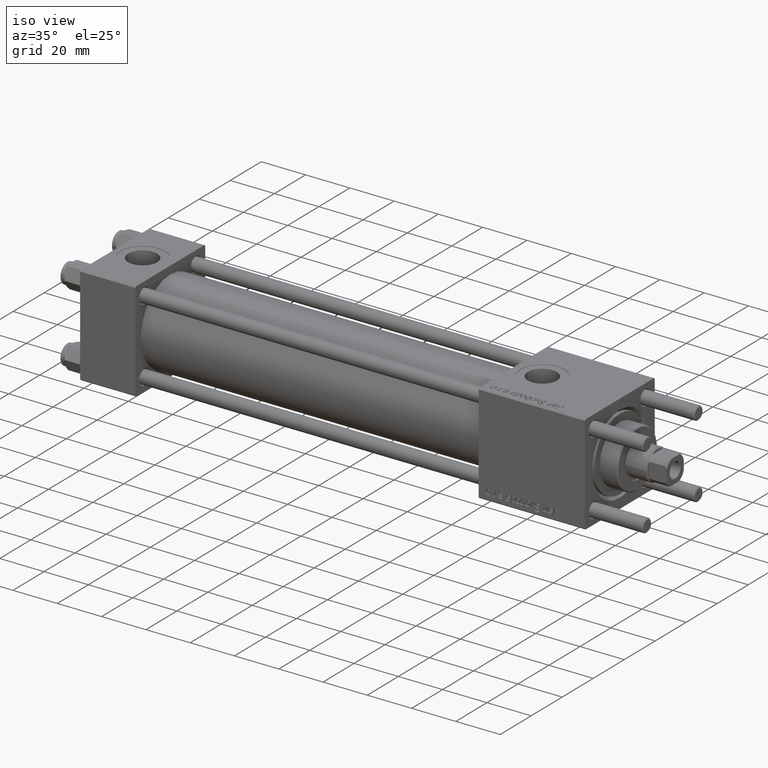
[diagram: clean part render]
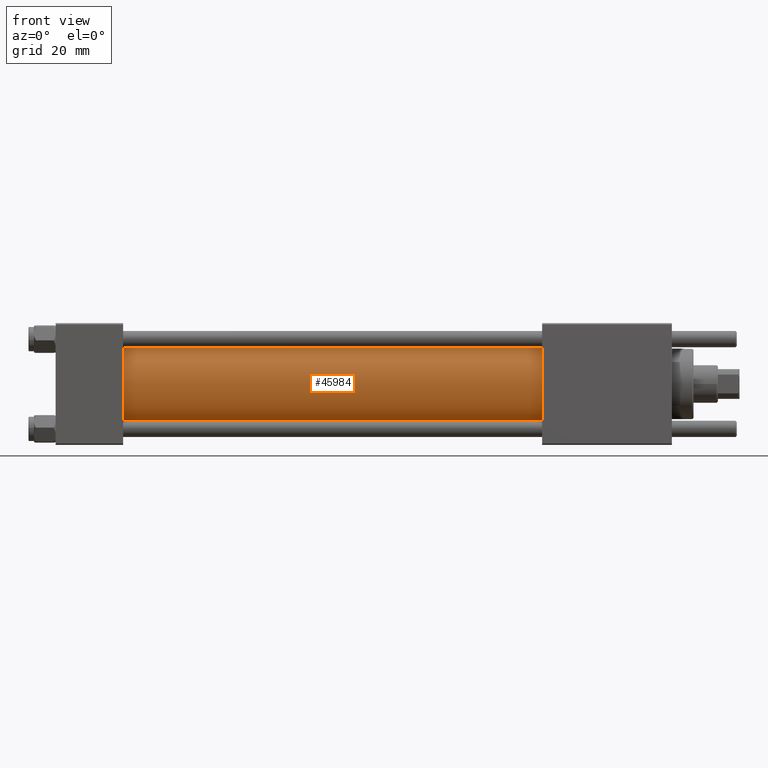
[diagram: tour spotlight — one face highlighted and labeled with its STEP entity id]
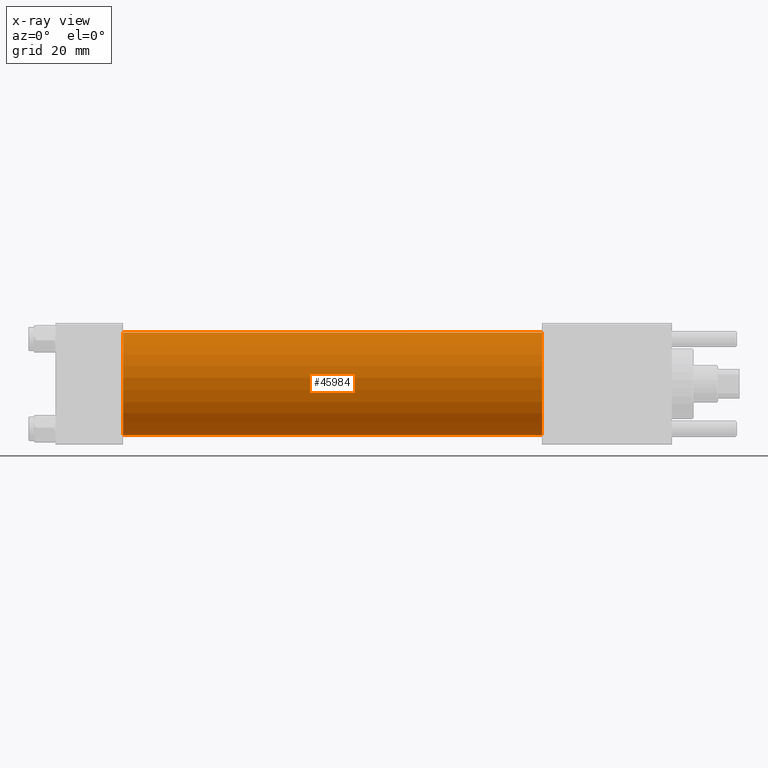
[diagram: x-ray of the same camera — body ghosted, this tour face saturated]
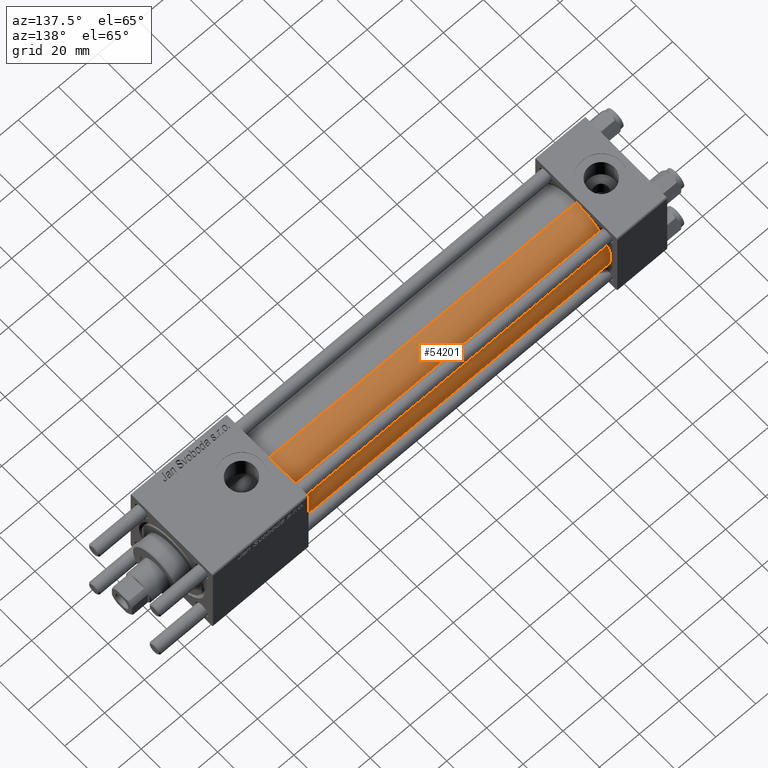
[diagram: tour spotlight — one face highlighted and labeled with its STEP entity id]
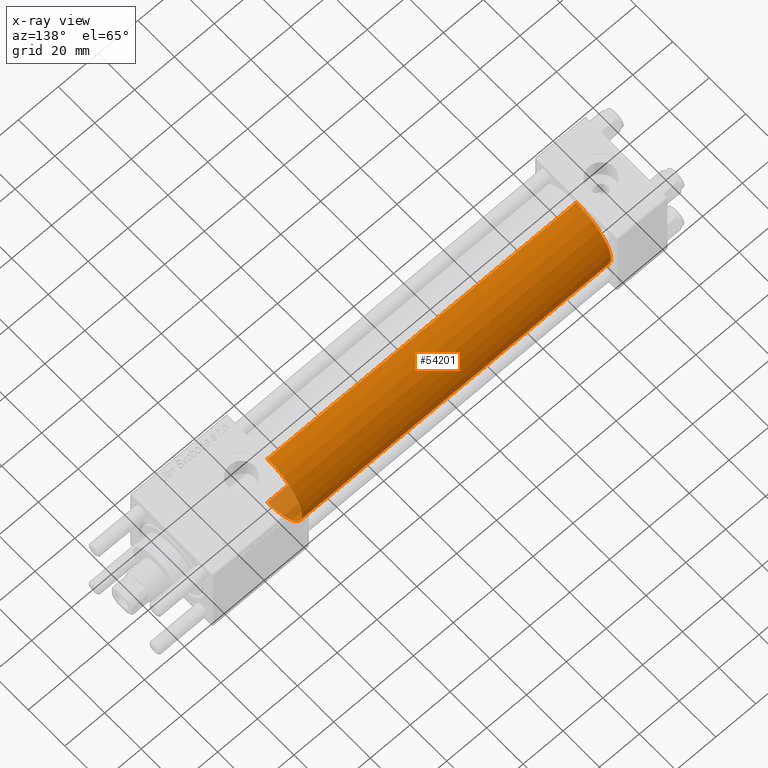
[diagram: x-ray of the same camera — body ghosted, this tour face saturated]
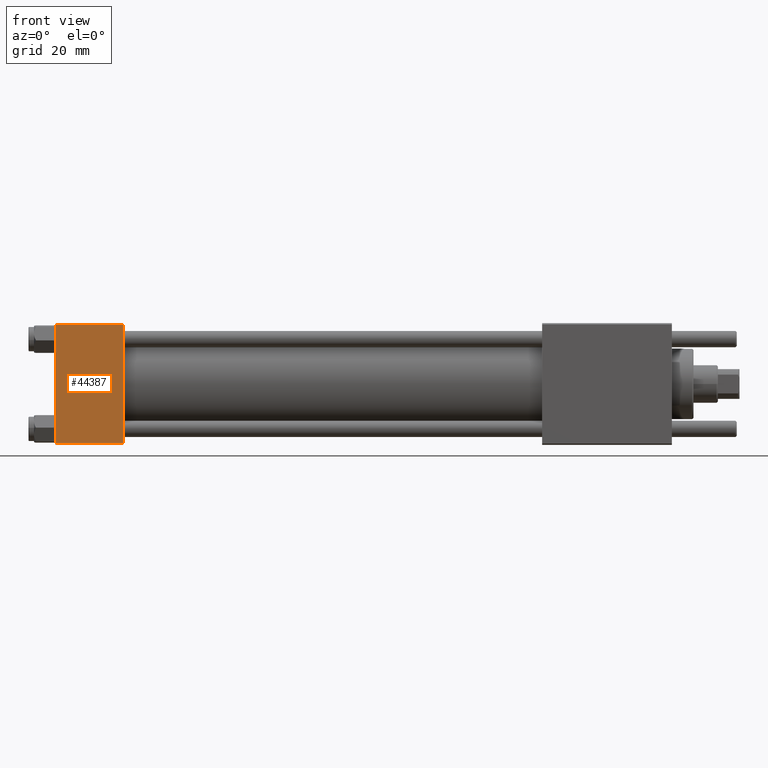
[diagram: tour spotlight — one face highlighted and labeled with its STEP entity id]
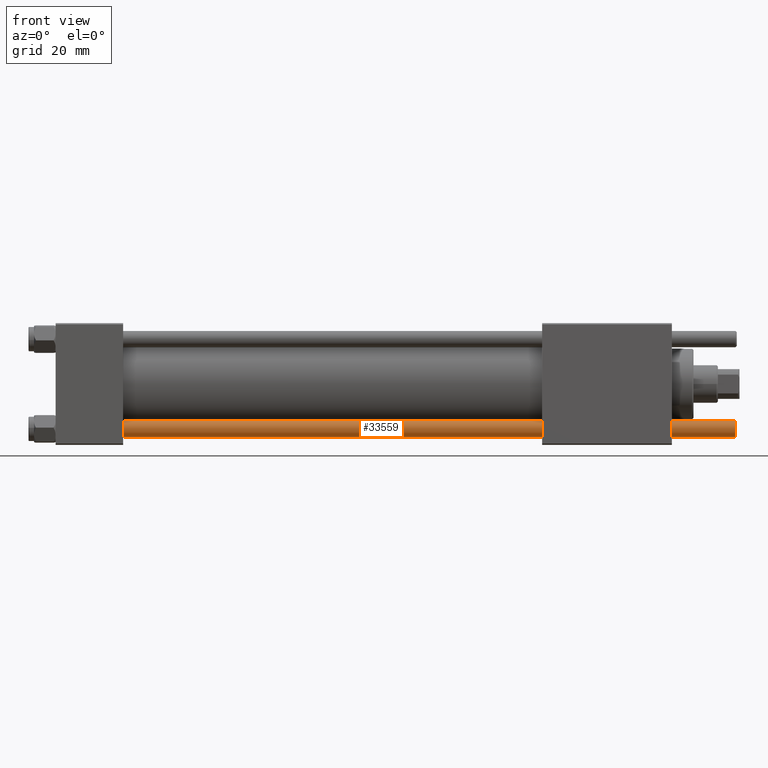
[diagram: tour spotlight — one face highlighted and labeled with its STEP entity id]
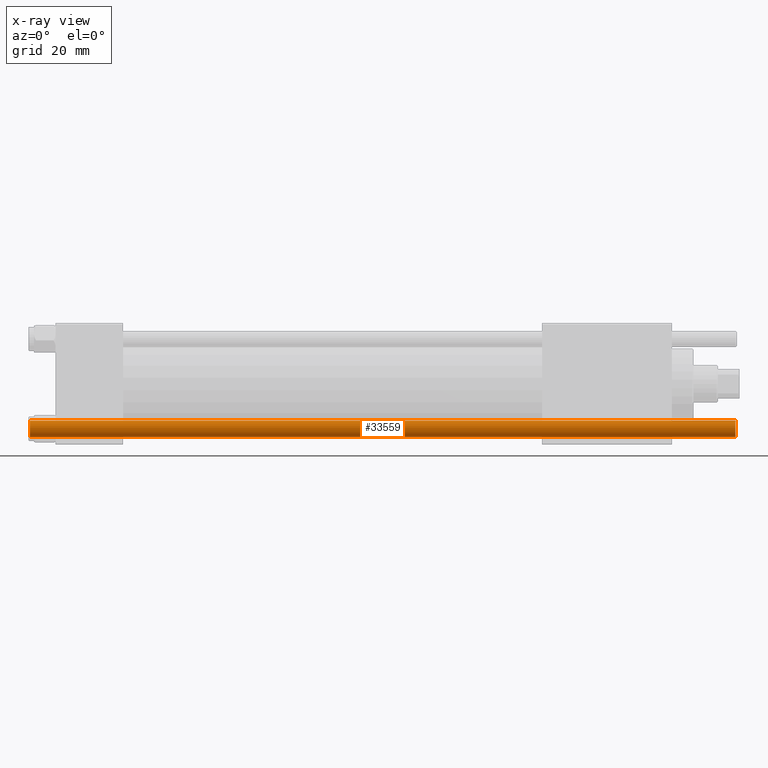
[diagram: x-ray of the same camera — body ghosted, this tour face saturated]
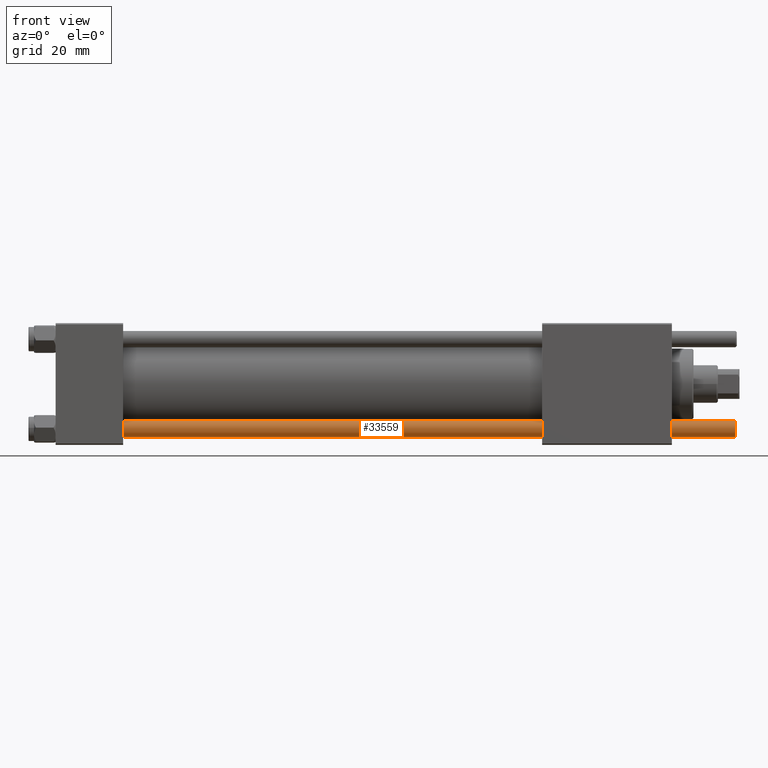
[diagram: tour spotlight — one face highlighted and labeled with its STEP entity id]
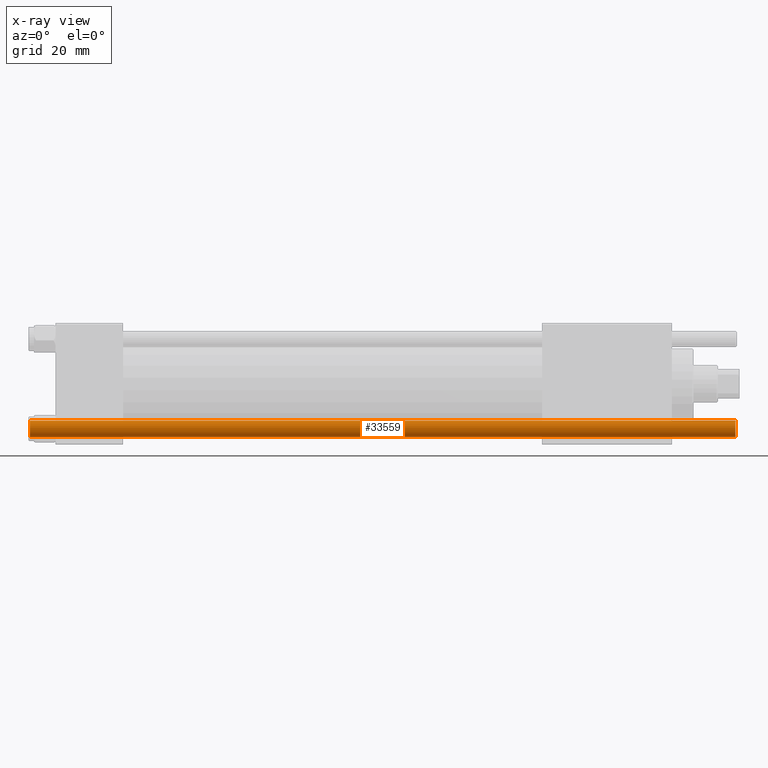
[diagram: x-ray of the same camera — body ghosted, this tour face saturated]
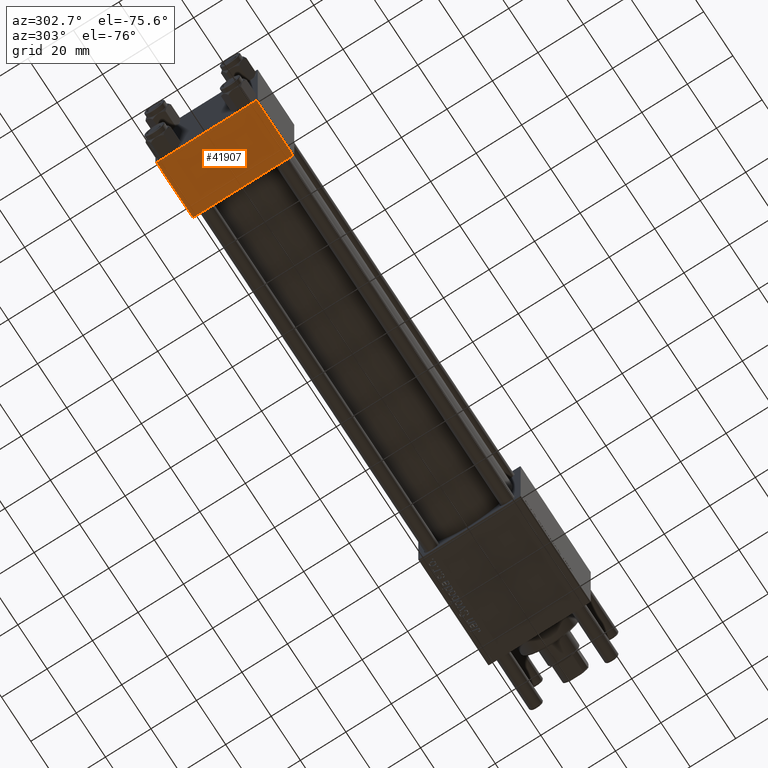
[diagram: tour spotlight — one face highlighted and labeled with its STEP entity id]
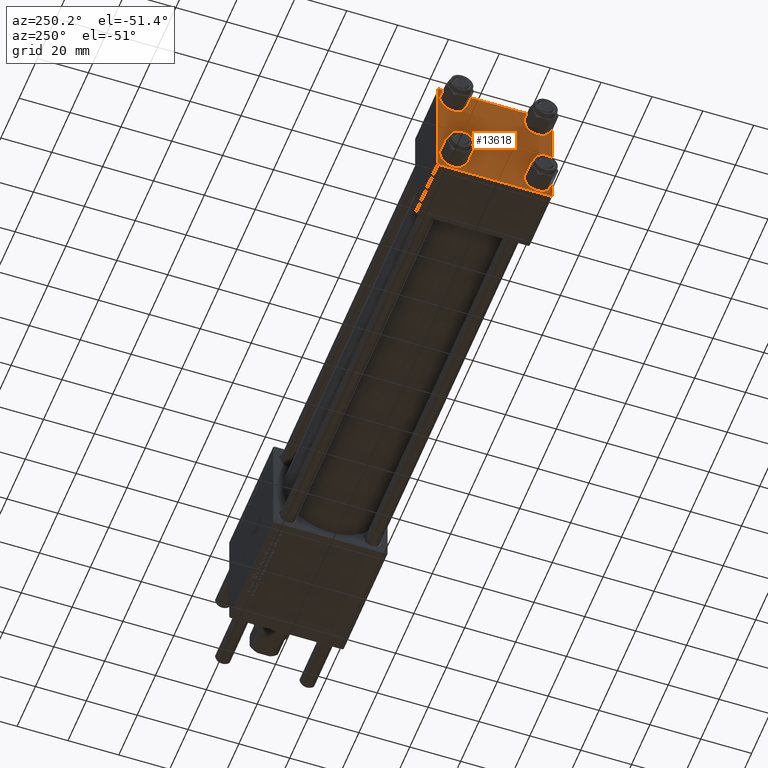
[diagram: tour spotlight — one face highlighted and labeled with its STEP entity id]
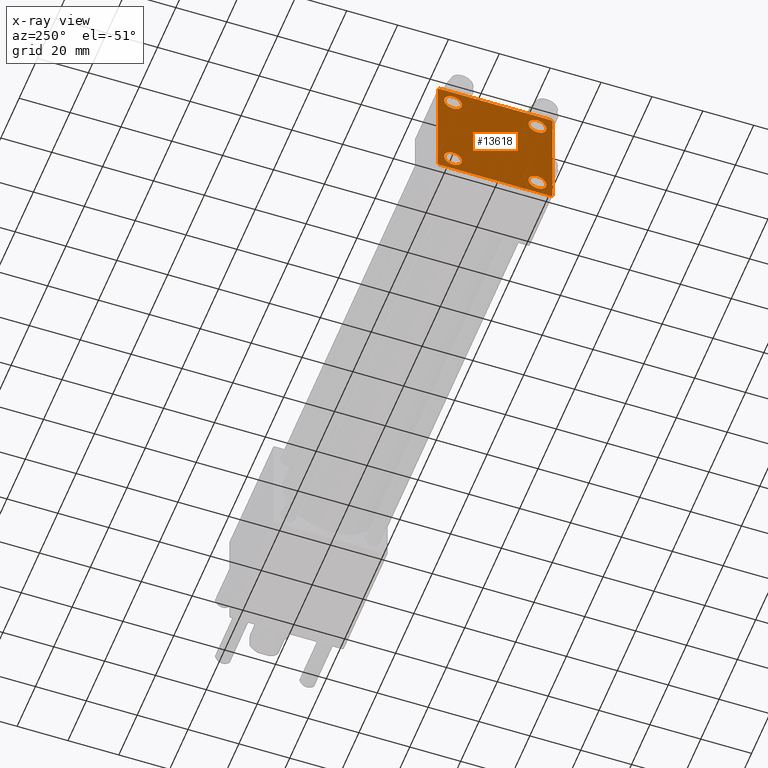
[diagram: x-ray of the same camera — body ghosted, this tour face saturated]
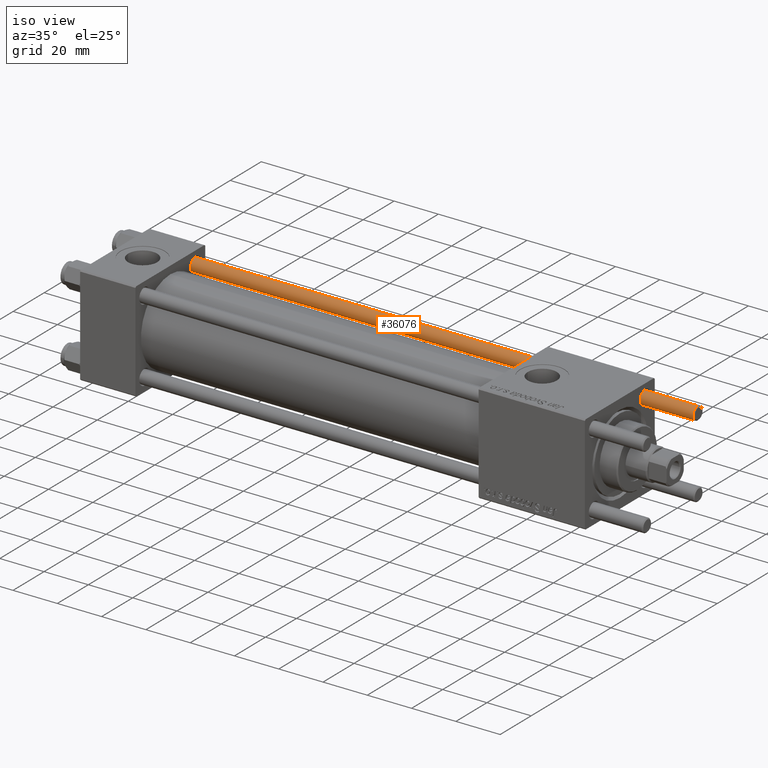
[diagram: tour spotlight — one face highlighted and labeled with its STEP entity id]
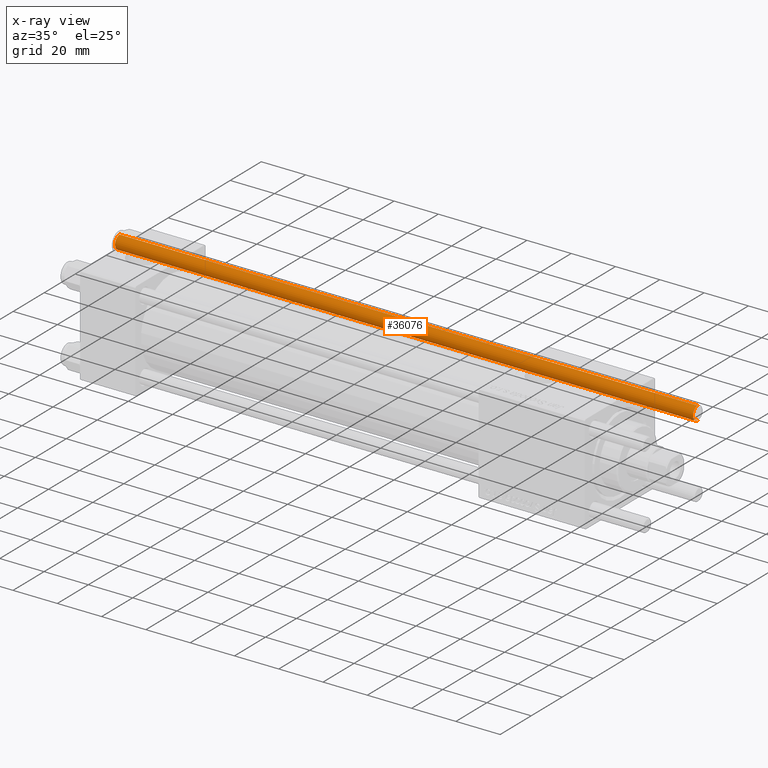
[diagram: x-ray of the same camera — body ghosted, this tour face saturated]
A machine part: a face-by-face anatomy tour. The part has 1157 B-rep faces; the first image is the clean iso view, then the 8 largest visible faces are spotlighted one at a time (largest first), each with its STEP entity span.

Face 1 — front view, entity #45984. An x-ray twin of the same camera follows (body ghosted, this face saturated) — the face is partly hidden behind the body. In plain terms, the highlighted cylindrical surface (partial cylindrical patch) has radius 19 mm, axis along (-1, -0, -0).
Definition (entity closure, byte-faithful):
#530 = DIRECTION ( 'NONE',  ( 0.000000000000000000, 0.000000000000000000, 1.000000000000000000 ) ) ;
#636 = VECTOR ( 'NONE', #50527, 1000.000000000000000 ) ;
#1388 = DIRECTION ( 'NONE',  ( -1.000000000000000000, -0.000000000000000000, -0.000000000000000000 ) ) ;
#1499 = DIRECTION ( 'NONE',  ( 0.000000000000000000, 0.000000000000000000, 1.000000000000000000 ) ) ;
#3740 = CARTESIAN_POINT ( 'NONE',  ( 24.99999999999999289, -2.602085213965210642E-15, 19.00000000000000000 ) ) ;
#5922 = DIRECTION ( 'NONE',  ( 0.000000000000000000, 0.000000000000000000, -1.000000000000000000 ) ) ;
#9732 = FACE_OUTER_BOUND ( 'NONE', #34065, .T. ) ;
#9945 = DIRECTION ( 'NONE',  ( 1.000000000000000000, 0.000000000000000000, 0.000000000000000000 ) ) ;
#10508 = LINE ( 'NONE', #42320, #30112 ) ;
#15470 = ORIENTED_EDGE ( 'NONE', *, *, #30469, .F. ) ;
#16413 = AXIS2_PLACEMENT_3D ( 'NONE', #48785, #1388, #530 ) ;
#19072 = CIRCLE ( 'NONE', #29176, 19.00000000000000000 ) ;
#19330 = CARTESIAN_POINT ( 'NONE',  ( 24.99999999999999289, -2.602085213965210642E-15, 0.000000000000000000 ) ) ;
#22240 = ORIENTED_EDGE ( 'NONE', *, *, #29735, .F. ) ;
#22649 = VERTEX_POINT ( 'NONE', #28792 ) ;
#24414 = CARTESIAN_POINT ( 'NONE',  ( 180.0000000000000000, -2.602085213965210642E-15, 19.00000000000000000 ) ) ;
#26413 = AXIS2_PLACEMENT_3D ( 'NONE', #49275, #9945, #5922 ) ;
#27809 = EDGE_CURVE ( 'NONE', #42169, #39009, #33045, .T. ) ;
#28792 = CARTESIAN_POINT ( 'NONE',  ( 24.99999999999999289, -2.752562955852396712E-16, -19.00000000000000000 ) ) ;
#29176 = AXIS2_PLACEMENT_3D ( 'NONE', #19330, #45754, #1499 ) ;
#29735 = EDGE_CURVE ( 'NONE', #34832, #22649, #10508, .T. ) ;
#30112 = VECTOR ( 'NONE', #56072, 1000.000000000000000 ) ;
#30242 = ORIENTED_EDGE ( 'NONE', *, *, #33664, .T. ) ;
#30469 = EDGE_CURVE ( 'NONE', #42169, #34832, #55769, .T. ) ;
#33045 = LINE ( 'NONE', #24414, #636 ) ;
#33664 = EDGE_CURVE ( 'NONE', #39009, #22649, #19072, .T. ) ;
#34065 = EDGE_LOOP ( 'NONE', ( #22240, #15470, #35804, #30242 ) ) ;
#34832 = VERTEX_POINT ( 'NONE', #37374 ) ;
#35804 = ORIENTED_EDGE ( 'NONE', *, *, #27809, .T. ) ;
#37374 = CARTESIAN_POINT ( 'NONE',  ( 180.0000000000000000, -2.752562955852396712E-16, -19.00000000000000000 ) ) ;
#39009 = VERTEX_POINT ( 'NONE', #3740 ) ;
#42169 = VERTEX_POINT ( 'NONE', #56400 ) ;
#42320 = CARTESIAN_POINT ( 'NONE',  ( 180.0000000000000000, -2.752562955852396712E-16, -19.00000000000000000 ) ) ;
#45754 = DIRECTION ( 'NONE',  ( 1.000000000000000000, -0.000000000000000000, 0.000000000000000000 ) ) ;
#45984 = ADVANCED_FACE ( 'NONE', ( #9732 ), #49068, .T. ) ;
#48785 = CARTESIAN_POINT ( 'NONE',  ( 180.0000000000000000, -2.602085213965210642E-15, 0.000000000000000000 ) ) ;
#49068 = CYLINDRICAL_SURFACE ( 'NONE', #16413, 19.00000000000000000 ) ;
#49275 = CARTESIAN_POINT ( 'NONE',  ( 180.0000000000000000, -2.602085213965210642E-15, 0.000000000000000000 ) ) ;
#50527 = DIRECTION ( 'NONE',  ( -1.000000000000000000, -0.000000000000000000, -0.000000000000000000 ) ) ;
#55769 = CIRCLE ( 'NONE', #26413, 19.00000000000000000 ) ;
#56072 = DIRECTION ( 'NONE',  ( -1.000000000000000000, -0.000000000000000000, -0.000000000000000000 ) ) ;
#56400 = CARTESIAN_POINT ( 'NONE',  ( 180.0000000000000000, -2.602085213965210642E-15, 19.00000000000000000 ) ) ;

Face 2 — auxiliary view, entity #54201. An x-ray twin of the same camera follows (body ghosted, this face saturated) — the face is partly hidden behind the body. In plain terms, the highlighted cylindrical surface (partial cylindrical patch) has radius 19 mm, axis along (-1, -0, -0).
Definition (entity closure, byte-faithful):
#636 = VECTOR ( 'NONE', #50527, 1000.000000000000000 ) ;
#3740 = CARTESIAN_POINT ( 'NONE',  ( 24.99999999999999289, -2.602085213965210642E-15, 19.00000000000000000 ) ) ;
#3807 = AXIS2_PLACEMENT_3D ( 'NONE', #13725, #26933, #44477 ) ;
#6478 = EDGE_CURVE ( 'NONE', #22649, #39009, #13019, .T. ) ;
#6751 = CARTESIAN_POINT ( 'NONE',  ( 24.99999999999999289, -2.602085213965210642E-15, 0.000000000000000000 ) ) ;
#7599 = AXIS2_PLACEMENT_3D ( 'NONE', #29967, #47472, #8123 ) ;
#8123 = DIRECTION ( 'NONE',  ( 0.000000000000000000, 0.000000000000000000, -1.000000000000000000 ) ) ;
#9160 = EDGE_CURVE ( 'NONE', #34832, #42169, #37893, .T. ) ;
#10271 = AXIS2_PLACEMENT_3D ( 'NONE', #6751, #36668, #14813 ) ;
#10508 = LINE ( 'NONE', #42320, #30112 ) ;
#13019 = CIRCLE ( 'NONE', #10271, 19.00000000000000000 ) ;
#13725 = CARTESIAN_POINT ( 'NONE',  ( 180.0000000000000000, -2.602085213965210642E-15, 0.000000000000000000 ) ) ;
#13810 = ORIENTED_EDGE ( 'NONE', *, *, #6478, .T. ) ;
#14813 = DIRECTION ( 'NONE',  ( 0.000000000000000000, 0.000000000000000000, 1.000000000000000000 ) ) ;
#17918 = ORIENTED_EDGE ( 'NONE', *, *, #29735, .T. ) ;
#22649 = VERTEX_POINT ( 'NONE', #28792 ) ;
#24414 = CARTESIAN_POINT ( 'NONE',  ( 180.0000000000000000, -2.602085213965210642E-15, 19.00000000000000000 ) ) ;
#26933 = DIRECTION ( 'NONE',  ( -1.000000000000000000, -0.000000000000000000, -0.000000000000000000 ) ) ;
#27809 = EDGE_CURVE ( 'NONE', #42169, #39009, #33045, .T. ) ;
#28792 = CARTESIAN_POINT ( 'NONE',  ( 24.99999999999999289, -2.752562955852396712E-16, -19.00000000000000000 ) ) ;
#29735 = EDGE_CURVE ( 'NONE', #34832, #22649, #10508, .T. ) ;
#29967 = CARTESIAN_POINT ( 'NONE',  ( 180.0000000000000000, -2.602085213965210642E-15, 0.000000000000000000 ) ) ;
#30112 = VECTOR ( 'NONE', #56072, 1000.000000000000000 ) ;
#33045 = LINE ( 'NONE', #24414, #636 ) ;
#34832 = VERTEX_POINT ( 'NONE', #37374 ) ;
#36549 = ORIENTED_EDGE ( 'NONE', *, *, #9160, .F. ) ;
#36668 = DIRECTION ( 'NONE',  ( 1.000000000000000000, -0.000000000000000000, 0.000000000000000000 ) ) ;
#37374 = CARTESIAN_POINT ( 'NONE',  ( 180.0000000000000000, -2.752562955852396712E-16, -19.00000000000000000 ) ) ;
#37893 = CIRCLE ( 'NONE', #7599, 19.00000000000000000 ) ;
#38744 = ORIENTED_EDGE ( 'NONE', *, *, #27809, .F. ) ;
#39009 = VERTEX_POINT ( 'NONE', #3740 ) ;
#42169 = VERTEX_POINT ( 'NONE', #56400 ) ;
#42320 = CARTESIAN_POINT ( 'NONE',  ( 180.0000000000000000, -2.752562955852396712E-16, -19.00000000000000000 ) ) ;
#44477 = DIRECTION ( 'NONE',  ( 0.000000000000000000, 0.000000000000000000, 1.000000000000000000 ) ) ;
#47472 = DIRECTION ( 'NONE',  ( 1.000000000000000000, 0.000000000000000000, 0.000000000000000000 ) ) ;
#50527 = DIRECTION ( 'NONE',  ( -1.000000000000000000, -0.000000000000000000, -0.000000000000000000 ) ) ;
#52775 = FACE_OUTER_BOUND ( 'NONE', #55007, .T. ) ;
#53056 = CYLINDRICAL_SURFACE ( 'NONE', #3807, 19.00000000000000000 ) ;
#54201 = ADVANCED_FACE ( 'NONE', ( #52775 ), #53056, .T. ) ;
#55007 = EDGE_LOOP ( 'NONE', ( #36549, #17918, #13810, #38744 ) ) ;
#56072 = DIRECTION ( 'NONE',  ( -1.000000000000000000, -0.000000000000000000, -0.000000000000000000 ) ) ;
#56400 = CARTESIAN_POINT ( 'NONE',  ( 180.0000000000000000, -2.602085213965210642E-15, 19.00000000000000000 ) ) ;

Face 3 — front view, entity #44387. In plain terms, the highlighted planar face has unit normal (0, 1, 0).
Definition (entity closure, byte-faithful):
#3093 = VECTOR ( 'NONE', #3635, 1000.000000000000000 ) ;
#3492 = AXIS2_PLACEMENT_3D ( 'NONE', #15169, #33278, #23508 ) ;
#3635 = DIRECTION ( 'NONE',  ( 0.000000000000000000, 0.000000000000000000, -1.000000000000000000 ) ) ;
#7882 = LINE ( 'NONE', #56706, #11425 ) ;
#9506 = CARTESIAN_POINT ( 'NONE',  ( 25.00000000000000000, -22.50000000000000000, -21.99999999999998579 ) ) ;
#10862 = PLANE ( 'NONE',  #3492 ) ;
#11425 = VECTOR ( 'NONE', #43235, 1000.000000000000000 ) ;
#12126 = EDGE_CURVE ( 'NONE', #53632, #19858, #47017, .T. ) ;
#12219 = EDGE_CURVE ( 'NONE', #53632, #32610, #26597, .T. ) ;
#14102 = LINE ( 'NONE', #9506, #42971 ) ;
#15169 = CARTESIAN_POINT ( 'NONE',  ( 25.00000000000000000, -22.50000000000000000, 22.50000000000000000 ) ) ;
#18832 = CARTESIAN_POINT ( 'NONE',  ( 25.00000000000000000, -22.50000000000000000, 22.00000000000000000 ) ) ;
#19460 = EDGE_CURVE ( 'NONE', #32610, #56029, #7882, .T. ) ;
#19493 = CARTESIAN_POINT ( 'NONE',  ( 25.00000000000000000, -22.50000000000000000, -21.99999999999997158 ) ) ;
#19858 = VERTEX_POINT ( 'NONE', #19493 ) ;
#22814 = CARTESIAN_POINT ( 'NONE',  ( 0.000000000000000000, -22.50000000000000000, 22.00000000000000000 ) ) ;
#22848 = DIRECTION ( 'NONE',  ( -1.000000000000000000, 0.000000000000000000, 0.000000000000000000 ) ) ;
#23508 = DIRECTION ( 'NONE',  ( 0.000000000000000000, -0.000000000000000000, 1.000000000000000000 ) ) ;
#25353 = ORIENTED_EDGE ( 'NONE', *, *, #12219, .T. ) ;
#26597 = LINE ( 'NONE', #18832, #42565 ) ;
#28860 = CARTESIAN_POINT ( 'NONE',  ( 0.000000000000000000, -22.50000000000000000, -21.99999999999997158 ) ) ;
#30229 = ORIENTED_EDGE ( 'NONE', *, *, #19460, .T. ) ;
#30406 = ORIENTED_EDGE ( 'NONE', *, *, #12126, .F. ) ;
#32610 = VERTEX_POINT ( 'NONE', #22814 ) ;
#33278 = DIRECTION ( 'NONE',  ( -0.000000000000000000, 1.000000000000000000, 0.000000000000000000 ) ) ;
#40587 = CARTESIAN_POINT ( 'NONE',  ( 25.00000000000000000, -22.50000000000000000, 22.00000000000000000 ) ) ;
#42182 = FACE_OUTER_BOUND ( 'NONE', #43141, .T. ) ;
#42565 = VECTOR ( 'NONE', #22848, 1000.000000000000000 ) ;
#42971 = VECTOR ( 'NONE', #44574, 1000.000000000000000 ) ;
#43141 = EDGE_LOOP ( 'NONE', ( #30229, #48193, #30406, #25353 ) ) ;
#43235 = DIRECTION ( 'NONE',  ( 0.000000000000000000, 0.000000000000000000, -1.000000000000000000 ) ) ;
#44068 = EDGE_CURVE ( 'NONE', #56029, #19858, #14102, .T. ) ;
#44387 = ADVANCED_FACE ( 'NONE', ( #42182 ), #10862, .F. ) ;
#44574 = DIRECTION ( 'NONE',  ( 1.000000000000000000, 0.000000000000000000, 0.000000000000000000 ) ) ;
#47017 = LINE ( 'NONE', #56770, #3093 ) ;
#48193 = ORIENTED_EDGE ( 'NONE', *, *, #44068, .T. ) ;
#53632 = VERTEX_POINT ( 'NONE', #40587 ) ;
#56029 = VERTEX_POINT ( 'NONE', #28860 ) ;
#56706 = CARTESIAN_POINT ( 'NONE',  ( 0.000000000000000000, -22.50000000000000000, 22.50000000000000000 ) ) ;
#56770 = CARTESIAN_POINT ( 'NONE',  ( 25.00000000000000000, -22.50000000000000000, 22.50000000000000000 ) ) ;

Face 4 — front view, entity #33559. An x-ray twin of the same camera follows (body ghosted, this face saturated) — the face is partly hidden behind the body. In plain terms, the highlighted cylindrical surface (edge-blend (fillet) strip) has radius 3 mm, axis along (-1, 0, -0).
Definition (entity closure, byte-faithful):
#3924 = ORIENTED_EDGE ( 'NONE', *, *, #44364, .F. ) ;
#4052 = EDGE_CURVE ( 'NONE', #16717, #43150, #30163, .T. ) ;
#4483 = ORIENTED_EDGE ( 'NONE', *, *, #15848, .T. ) ;
#6328 = DIRECTION ( 'NONE',  ( 1.000000000000000000, 0.000000000000000000, 0.000000000000000000 ) ) ;
#6733 = CIRCLE ( 'NONE', #36119, 3.000000000000000444 ) ;
#9513 = CYLINDRICAL_SURFACE ( 'NONE', #43861, 3.000000000000000444 ) ;
#10006 = DIRECTION ( 'NONE',  ( 1.000000000000000000, 0.000000000000000000, 0.000000000000000000 ) ) ;
#14887 = DIRECTION ( 'NONE',  ( -0.000000000000000000, -0.000000000000000000, 1.000000000000000000 ) ) ;
#15233 = DIRECTION ( 'NONE',  ( 0.000000000000000000, 0.000000000000000000, -1.000000000000000000 ) ) ;
#15739 = DIRECTION ( 'NONE',  ( -0.000000000000000000, -0.000000000000000000, -1.000000000000000000 ) ) ;
#15848 = EDGE_CURVE ( 'NONE', #49711, #27907, #6733, .T. ) ;
#16717 = VERTEX_POINT ( 'NONE', #39714 ) ;
#18994 = DIRECTION ( 'NONE',  ( -0.000000000000000000, -0.000000000000000000, -1.000000000000000000 ) ) ;
#19204 = CARTESIAN_POINT ( 'NONE',  ( -3.000000000000000444, 0.000000000000000000, 262.0000000000000000 ) ) ;
#21914 = AXIS2_PLACEMENT_3D ( 'NONE', #37373, #15233, #6328 ) ;
#23306 = CARTESIAN_POINT ( 'NONE',  ( 0.000000000000000000, 0.000000000000000000, 262.0000000000000000 ) ) ;
#23320 = ORIENTED_EDGE ( 'NONE', *, *, #34718, .T. ) ;
#24620 = VECTOR ( 'NONE', #15739, 1000.000000000000000 ) ;
#27320 = DIRECTION ( 'NONE',  ( -1.000000000000000000, 0.000000000000000000, 0.000000000000000000 ) ) ;
#27532 = CARTESIAN_POINT ( 'NONE',  ( 0.000000000000000000, 0.000000000000000000, 0.5000000000000004441 ) ) ;
#27907 = VERTEX_POINT ( 'NONE', #52998 ) ;
#29952 = CARTESIAN_POINT ( 'NONE',  ( 3.000000000000000444, 3.673940397442060361E-16, 0.5000000000000004441 ) ) ;
#30163 = CIRCLE ( 'NONE', #21914, 3.000000000000000444 ) ;
#33559 = ADVANCED_FACE ( 'NONE', ( #45146 ), #9513, .T. ) ;
#34718 = EDGE_CURVE ( 'NONE', #43150, #49711, #39211, .T. ) ;
#34890 = DIRECTION ( 'NONE',  ( -0.000000000000000000, -0.000000000000000000, -1.000000000000000000 ) ) ;
#35611 = VECTOR ( 'NONE', #34890, 1000.000000000000000 ) ;
#35723 = CARTESIAN_POINT ( 'NONE',  ( 3.000000000000000444, 3.673940397442060361E-16, 261.5000000000000568 ) ) ;
#36119 = AXIS2_PLACEMENT_3D ( 'NONE', #27532, #14887, #10006 ) ;
#37306 = LINE ( 'NONE', #19204, #24620 ) ;
#37373 = CARTESIAN_POINT ( 'NONE',  ( 0.000000000000000000, 0.000000000000000000, 261.5000000000000568 ) ) ;
#39211 = LINE ( 'NONE', #56702, #35611 ) ;
#39714 = CARTESIAN_POINT ( 'NONE',  ( -3.000000000000000444, 0.000000000000000000, 261.5000000000000568 ) ) ;
#39939 = EDGE_LOOP ( 'NONE', ( #43008, #23320, #4483, #3924 ) ) ;
#43008 = ORIENTED_EDGE ( 'NONE', *, *, #4052, .T. ) ;
#43150 = VERTEX_POINT ( 'NONE', #35723 ) ;
#43861 = AXIS2_PLACEMENT_3D ( 'NONE', #23306, #18994, #27320 ) ;
#44364 = EDGE_CURVE ( 'NONE', #16717, #27907, #37306, .T. ) ;
#45146 = FACE_OUTER_BOUND ( 'NONE', #39939, .T. ) ;
#49711 = VERTEX_POINT ( 'NONE', #29952 ) ;
#52998 = CARTESIAN_POINT ( 'NONE',  ( -3.000000000000000444, 0.000000000000000000, 0.5000000000000004441 ) ) ;
#56702 = CARTESIAN_POINT ( 'NONE',  ( 3.000000000000000444, 3.673940397442060361E-16, 262.0000000000000000 ) ) ;

Face 5 — front view, entity #33559. An x-ray twin of the same camera follows (body ghosted, this face saturated) — the face is partly hidden behind the body. In plain terms, the highlighted cylindrical surface (edge-blend (fillet) strip) has radius 3 mm, axis along (1, 0, 0).
Definition (entity closure, byte-faithful):
#3924 = ORIENTED_EDGE ( 'NONE', *, *, #44364, .F. ) ;
#4052 = EDGE_CURVE ( 'NONE', #16717, #43150, #30163, .T. ) ;
#4483 = ORIENTED_EDGE ( 'NONE', *, *, #15848, .T. ) ;
#6328 = DIRECTION ( 'NONE',  ( 1.000000000000000000, 0.000000000000000000, 0.000000000000000000 ) ) ;
#6733 = CIRCLE ( 'NONE', #36119, 3.000000000000000444 ) ;
#9513 = CYLINDRICAL_SURFACE ( 'NONE', #43861, 3.000000000000000444 ) ;
#10006 = DIRECTION ( 'NONE',  ( 1.000000000000000000, 0.000000000000000000, 0.000000000000000000 ) ) ;
#14887 = DIRECTION ( 'NONE',  ( -0.000000000000000000, -0.000000000000000000, 1.000000000000000000 ) ) ;
#15233 = DIRECTION ( 'NONE',  ( 0.000000000000000000, 0.000000000000000000, -1.000000000000000000 ) ) ;
#15739 = DIRECTION ( 'NONE',  ( -0.000000000000000000, -0.000000000000000000, -1.000000000000000000 ) ) ;
#15848 = EDGE_CURVE ( 'NONE', #49711, #27907, #6733, .T. ) ;
#16717 = VERTEX_POINT ( 'NONE', #39714 ) ;
#18994 = DIRECTION ( 'NONE',  ( -0.000000000000000000, -0.000000000000000000, -1.000000000000000000 ) ) ;
#19204 = CARTESIAN_POINT ( 'NONE',  ( -3.000000000000000444, 0.000000000000000000, 262.0000000000000000 ) ) ;
#21914 = AXIS2_PLACEMENT_3D ( 'NONE', #37373, #15233, #6328 ) ;
#23306 = CARTESIAN_POINT ( 'NONE',  ( 0.000000000000000000, 0.000000000000000000, 262.0000000000000000 ) ) ;
#23320 = ORIENTED_EDGE ( 'NONE', *, *, #34718, .T. ) ;
#24620 = VECTOR ( 'NONE', #15739, 1000.000000000000000 ) ;
#27320 = DIRECTION ( 'NONE',  ( -1.000000000000000000, 0.000000000000000000, 0.000000000000000000 ) ) ;
#27532 = CARTESIAN_POINT ( 'NONE',  ( 0.000000000000000000, 0.000000000000000000, 0.5000000000000004441 ) ) ;
#27907 = VERTEX_POINT ( 'NONE', #52998 ) ;
#29952 = CARTESIAN_POINT ( 'NONE',  ( 3.000000000000000444, 3.673940397442060361E-16, 0.5000000000000004441 ) ) ;
#30163 = CIRCLE ( 'NONE', #21914, 3.000000000000000444 ) ;
#33559 = ADVANCED_FACE ( 'NONE', ( #45146 ), #9513, .T. ) ;
#34718 = EDGE_CURVE ( 'NONE', #43150, #49711, #39211, .T. ) ;
#34890 = DIRECTION ( 'NONE',  ( -0.000000000000000000, -0.000000000000000000, -1.000000000000000000 ) ) ;
#35611 = VECTOR ( 'NONE', #34890, 1000.000000000000000 ) ;
#35723 = CARTESIAN_POINT ( 'NONE',  ( 3.000000000000000444, 3.673940397442060361E-16, 261.5000000000000568 ) ) ;
#36119 = AXIS2_PLACEMENT_3D ( 'NONE', #27532, #14887, #10006 ) ;
#37306 = LINE ( 'NONE', #19204, #24620 ) ;
#37373 = CARTESIAN_POINT ( 'NONE',  ( 0.000000000000000000, 0.000000000000000000, 261.5000000000000568 ) ) ;
#39211 = LINE ( 'NONE', #56702, #35611 ) ;
#39714 = CARTESIAN_POINT ( 'NONE',  ( -3.000000000000000444, 0.000000000000000000, 261.5000000000000568 ) ) ;
#39939 = EDGE_LOOP ( 'NONE', ( #43008, #23320, #4483, #3924 ) ) ;
#43008 = ORIENTED_EDGE ( 'NONE', *, *, #4052, .T. ) ;
#43150 = VERTEX_POINT ( 'NONE', #35723 ) ;
#43861 = AXIS2_PLACEMENT_3D ( 'NONE', #23306, #18994, #27320 ) ;
#44364 = EDGE_CURVE ( 'NONE', #16717, #27907, #37306, .T. ) ;
#45146 = FACE_OUTER_BOUND ( 'NONE', #39939, .T. ) ;
#49711 = VERTEX_POINT ( 'NONE', #29952 ) ;
#52998 = CARTESIAN_POINT ( 'NONE',  ( -3.000000000000000444, 0.000000000000000000, 0.5000000000000004441 ) ) ;
#56702 = CARTESIAN_POINT ( 'NONE',  ( 3.000000000000000444, 3.673940397442060361E-16, 262.0000000000000000 ) ) ;

Face 6 — auxiliary view, entity #41907. In plain terms, the highlighted planar face has unit normal (0, 0, -1).
Definition (entity closure, byte-faithful):
#133 = DIRECTION ( 'NONE',  ( 0.000000000000000000, 2.312964634635742957E-16, -1.000000000000000000 ) ) ;
#819 = CARTESIAN_POINT ( 'NONE',  ( 25.00000000000000000, -21.99999999999997158, -22.50000000000000711 ) ) ;
#4469 = LINE ( 'NONE', #22554, #34318 ) ;
#11308 = EDGE_CURVE ( 'NONE', #21837, #18047, #4469, .T. ) ;
#12131 = EDGE_CURVE ( 'NONE', #50518, #21837, #29796, .T. ) ;
#16123 = CARTESIAN_POINT ( 'NONE',  ( 25.00000000000000000, 21.99999999999999289, -22.49999999999999645 ) ) ;
#18047 = VERTEX_POINT ( 'NONE', #819 ) ;
#19609 = LINE ( 'NONE', #28790, #27728 ) ;
#21625 = VERTEX_POINT ( 'NONE', #48880 ) ;
#21837 = VERTEX_POINT ( 'NONE', #16123 ) ;
#22554 = CARTESIAN_POINT ( 'NONE',  ( 25.00000000000000000, 22.50000000000000000, -22.49999999999999645 ) ) ;
#24064 = ORIENTED_EDGE ( 'NONE', *, *, #56027, .T. ) ;
#25754 = DIRECTION ( 'NONE',  ( 1.000000000000000000, 0.000000000000000000, 0.000000000000000000 ) ) ;
#25877 = VECTOR ( 'NONE', #28572, 1000.000000000000000 ) ;
#26611 = AXIS2_PLACEMENT_3D ( 'NONE', #34934, #133, #52982 ) ;
#27649 = DIRECTION ( 'NONE',  ( 0.000000000000000000, -1.000000000000000000, -2.312964634635742957E-16 ) ) ;
#27721 = DIRECTION ( 'NONE',  ( 0.000000000000000000, -1.000000000000000000, -2.312964634635742957E-16 ) ) ;
#27728 = VECTOR ( 'NONE', #27649, 1000.000000000000000 ) ;
#28572 = DIRECTION ( 'NONE',  ( -1.000000000000000000, 0.000000000000000000, 0.000000000000000000 ) ) ;
#28790 = CARTESIAN_POINT ( 'NONE',  ( 0.000000000000000000, 22.50000000000000000, -22.49999999999999645 ) ) ;
#29409 = CARTESIAN_POINT ( 'NONE',  ( 0.000000000000000000, 21.99999999999999289, -22.49999999999999645 ) ) ;
#29796 = LINE ( 'NONE', #30347, #40717 ) ;
#30347 = CARTESIAN_POINT ( 'NONE',  ( 25.00000000000000000, 21.99999999999999289, -22.49999999999999645 ) ) ;
#31655 = ORIENTED_EDGE ( 'NONE', *, *, #11308, .T. ) ;
#34238 = EDGE_LOOP ( 'NONE', ( #37163, #42561, #31655, #24064 ) ) ;
#34318 = VECTOR ( 'NONE', #27721, 1000.000000000000000 ) ;
#34934 = CARTESIAN_POINT ( 'NONE',  ( 25.00000000000000000, 22.50000000000000000, -22.49999999999999645 ) ) ;
#35497 = FACE_OUTER_BOUND ( 'NONE', #34238, .T. ) ;
#36641 = LINE ( 'NONE', #54125, #25877 ) ;
#37163 = ORIENTED_EDGE ( 'NONE', *, *, #56422, .F. ) ;
#40717 = VECTOR ( 'NONE', #25754, 1000.000000000000000 ) ;
#41907 = ADVANCED_FACE ( 'NONE', ( #35497 ), #44126, .T. ) ;
#42561 = ORIENTED_EDGE ( 'NONE', *, *, #12131, .T. ) ;
#44126 = PLANE ( 'NONE',  #26611 ) ;
#48880 = CARTESIAN_POINT ( 'NONE',  ( 0.000000000000000000, -21.99999999999997158, -22.50000000000000711 ) ) ;
#50518 = VERTEX_POINT ( 'NONE', #29409 ) ;
#52982 = DIRECTION ( 'NONE',  ( 0.000000000000000000, 1.000000000000000000, 2.312964634635742957E-16 ) ) ;
#54125 = CARTESIAN_POINT ( 'NONE',  ( 0.000000000000000000, -21.99999999999998579, -22.50000000000000711 ) ) ;
#56027 = EDGE_CURVE ( 'NONE', #18047, #21625, #36641, .T. ) ;
#56422 = EDGE_CURVE ( 'NONE', #50518, #21625, #19609, .T. ) ;

Face 7 — auxiliary view, entity #13618. An x-ray twin of the same camera follows (body ghosted, this face saturated) — the face is partly hidden behind the body. In plain terms, the highlighted planar face has unit normal (-1, 0, 0).
Definition (entity closure, byte-faithful):
#66 = DIRECTION ( 'NONE',  ( -0.000000000000000000, -0.7071067811865426878, -0.7071067811865524577 ) ) ;
#330 = VERTEX_POINT ( 'NONE', #15411 ) ;
#359 = VECTOR ( 'NONE', #15688, 999.9999999999998863 ) ;
#558 = VECTOR ( 'NONE', #8498, 1000.000000000000114 ) ;
#1114 = EDGE_LOOP ( 'NONE', ( #6433, #13561 ) ) ;
#1867 = EDGE_CURVE ( 'NONE', #330, #50518, #39473, .T. ) ;
#2907 = CIRCLE ( 'NONE', #6605, 3.499999999999996003 ) ;
#3846 = AXIS2_PLACEMENT_3D ( 'NONE', #29487, #12792, #55334 ) ;
#4056 = ORIENTED_EDGE ( 'NONE', *, *, #37903, .T. ) ;
#4296 = CIRCLE ( 'NONE', #14390, 3.499999999999996003 ) ;
#4570 = DIRECTION ( 'NONE',  ( 0.000000000000000000, 0.000000000000000000, 1.000000000000000000 ) ) ;
#5236 = DIRECTION ( 'NONE',  ( 0.000000000000000000, 0.000000000000000000, 1.000000000000000000 ) ) ;
#5668 = EDGE_LOOP ( 'NONE', ( #55418, #36453, #40473, #20063, #14902, #47646, #45055, #24543 ) ) ;
#6174 = CARTESIAN_POINT ( 'NONE',  ( 0.000000000000000000, 16.59999999999999787, 16.60000000000000497 ) ) ;
#6433 = ORIENTED_EDGE ( 'NONE', *, *, #23366, .T. ) ;
#6605 = AXIS2_PLACEMENT_3D ( 'NONE', #7006, #10479, #15359 ) ;
#7006 = CARTESIAN_POINT ( 'NONE',  ( 0.000000000000000000, -16.59999999999999076, -16.60000000000000853 ) ) ;
#7776 = DIRECTION ( 'NONE',  ( 0.000000000000000000, -0.7071067811865426878, 0.7071067811865524577 ) ) ;
#7847 = CARTESIAN_POINT ( 'NONE',  ( 0.000000000000000000, -16.59999999999999076, -16.60000000000000853 ) ) ;
#7882 = LINE ( 'NONE', #56706, #11425 ) ;
#7909 = CARTESIAN_POINT ( 'NONE',  ( 0.000000000000000000, 0.000000000000000000, 0.000000000000000000 ) ) ;
#8135 = EDGE_LOOP ( 'NONE', ( #24799, #4056 ) ) ;
#8498 = DIRECTION ( 'NONE',  ( 0.000000000000000000, 0.7071067811865474617, -0.7071067811865474617 ) ) ;
#10479 = DIRECTION ( 'NONE',  ( 1.000000000000000000, -0.000000000000000000, 0.000000000000000000 ) ) ;
#10689 = CARTESIAN_POINT ( 'NONE',  ( 0.000000000000000000, 22.50000000000000000, 21.99999999999999645 ) ) ;
#11297 = DIRECTION ( 'NONE',  ( 0.000000000000000000, 0.000000000000000000, -1.000000000000000000 ) ) ;
#11425 = VECTOR ( 'NONE', #43235, 1000.000000000000000 ) ;
#11874 = LINE ( 'NONE', #50622, #52650 ) ;
#11953 = LINE ( 'NONE', #24588, #359 ) ;
#12471 = DIRECTION ( 'NONE',  ( 1.000000000000000000, -0.000000000000000000, 0.000000000000000000 ) ) ;
#12473 = AXIS2_PLACEMENT_3D ( 'NONE', #7847, #22200, #56110 ) ;
#12792 = DIRECTION ( 'NONE',  ( 1.000000000000000000, -0.000000000000000000, 0.000000000000000000 ) ) ;
#12814 = CARTESIAN_POINT ( 'NONE',  ( 0.000000000000000000, 22.24999999999999645, 22.24999999999999645 ) ) ;
#13139 = VECTOR ( 'NONE', #7776, 1000.000000000000000 ) ;
#13235 = EDGE_CURVE ( 'NONE', #24343, #330, #11874, .T. ) ;
#13384 = AXIS2_PLACEMENT_3D ( 'NONE', #30554, #52922, #5236 ) ;
#13492 = ORIENTED_EDGE ( 'NONE', *, *, #28712, .T. ) ;
#13561 = ORIENTED_EDGE ( 'NONE', *, *, #56093, .T. ) ;
#13618 = ADVANCED_FACE ( 'NONE', ( #33231, #37828, #20856, #55325, #50710 ), #50995, .T. ) ;
#13882 = DIRECTION ( 'NONE',  ( 0.000000000000000000, -1.000000000000000000, -7.709882115452476934E-17 ) ) ;
#14390 = AXIS2_PLACEMENT_3D ( 'NONE', #31286, #26976, #4570 ) ;
#14612 = AXIS2_PLACEMENT_3D ( 'NONE', #6174, #36934, #35304 ) ;
#14902 = ORIENTED_EDGE ( 'NONE', *, *, #19460, .F. ) ;
#14943 = VERTEX_POINT ( 'NONE', #25027 ) ;
#14985 = EDGE_CURVE ( 'NONE', #21625, #56029, #16402, .T. ) ;
#15359 = DIRECTION ( 'NONE',  ( 0.000000000000000000, 0.000000000000000000, 1.000000000000000000 ) ) ;
#15411 = CARTESIAN_POINT ( 'NONE',  ( 0.000000000000000000, 22.50000000000000000, -21.99999999999996803 ) ) ;
#15609 = CARTESIAN_POINT ( 'NONE',  ( 0.000000000000000000, 16.59999999999999787, 20.10000000000000142 ) ) ;
#15688 = DIRECTION ( 'NONE',  ( -0.000000000000000000, 0.7071067811865525687, 0.7071067811865425767 ) ) ;
#16402 = LINE ( 'NONE', #33094, #13139 ) ;
#17297 = EDGE_CURVE ( 'NONE', #32610, #36886, #11953, .T. ) ;
#17517 = ORIENTED_EDGE ( 'NONE', *, *, #54998, .T. ) ;
#19460 = EDGE_CURVE ( 'NONE', #32610, #56029, #7882, .T. ) ;
#19609 = LINE ( 'NONE', #28790, #27728 ) ;
#19980 = CARTESIAN_POINT ( 'NONE',  ( 0.000000000000000000, 16.59999999999999787, -13.10000000000000675 ) ) ;
#20063 = ORIENTED_EDGE ( 'NONE', *, *, #14985, .T. ) ;
#20441 = DIRECTION ( 'NONE',  ( 0.000000000000000000, 0.000000000000000000, 1.000000000000000000 ) ) ;
#20856 = FACE_BOUND ( 'NONE', #8135, .T. ) ;
#21003 = AXIS2_PLACEMENT_3D ( 'NONE', #32539, #29349, #20441 ) ;
#21625 = VERTEX_POINT ( 'NONE', #48880 ) ;
#22200 = DIRECTION ( 'NONE',  ( 1.000000000000000000, -0.000000000000000000, 0.000000000000000000 ) ) ;
#22437 = CARTESIAN_POINT ( 'NONE',  ( 0.000000000000000000, 21.99999999999999289, 22.50000000000000355 ) ) ;
#22477 = CARTESIAN_POINT ( 'NONE',  ( 0.000000000000000000, 22.25000000000014566, -22.24999999999984013 ) ) ;
#22582 = EDGE_CURVE ( 'NONE', #28526, #48702, #54655, .T. ) ;
#22814 = CARTESIAN_POINT ( 'NONE',  ( 0.000000000000000000, -22.50000000000000000, 22.00000000000000000 ) ) ;
#23366 = EDGE_CURVE ( 'NONE', #34886, #36626, #37272, .T. ) ;
#23930 = EDGE_LOOP ( 'NONE', ( #13492, #30261 ) ) ;
#24343 = VERTEX_POINT ( 'NONE', #10689 ) ;
#24543 = ORIENTED_EDGE ( 'NONE', *, *, #24769, .T. ) ;
#24588 = CARTESIAN_POINT ( 'NONE',  ( -0.000000000000000000, -22.24999999999984013, 22.25000000000015277 ) ) ;
#24750 = CARTESIAN_POINT ( 'NONE',  ( 0.000000000000000000, 16.59999999999999787, 13.10000000000000675 ) ) ;
#24769 = EDGE_CURVE ( 'NONE', #44008, #24343, #27153, .T. ) ;
#24799 = ORIENTED_EDGE ( 'NONE', *, *, #22582, .T. ) ;
#25027 = CARTESIAN_POINT ( 'NONE',  ( 0.000000000000000000, -16.59999999999999076, 20.10000000000000853 ) ) ;
#25437 = DIRECTION ( 'NONE',  ( -0.000000000000000000, 0.000000000000000000, 1.000000000000000000 ) ) ;
#26976 = DIRECTION ( 'NONE',  ( 1.000000000000000000, -0.000000000000000000, 0.000000000000000000 ) ) ;
#27153 = LINE ( 'NONE', #12814, #558 ) ;
#27649 = DIRECTION ( 'NONE',  ( 0.000000000000000000, -1.000000000000000000, -2.312964634635742957E-16 ) ) ;
#27728 = VECTOR ( 'NONE', #27649, 1000.000000000000000 ) ;
#28526 = VERTEX_POINT ( 'NONE', #19980 ) ;
#28712 = EDGE_CURVE ( 'NONE', #14943, #44587, #54822, .T. ) ;
#28790 = CARTESIAN_POINT ( 'NONE',  ( 0.000000000000000000, 22.50000000000000000, -22.49999999999999645 ) ) ;
#28860 = CARTESIAN_POINT ( 'NONE',  ( 0.000000000000000000, -22.50000000000000000, -21.99999999999997158 ) ) ;
#29026 = CARTESIAN_POINT ( 'NONE',  ( 0.000000000000000000, -16.59999999999999076, -13.10000000000001030 ) ) ;
#29349 = DIRECTION ( 'NONE',  ( 1.000000000000000000, -0.000000000000000000, 0.000000000000000000 ) ) ;
#29409 = CARTESIAN_POINT ( 'NONE',  ( 0.000000000000000000, 21.99999999999999289, -22.49999999999999645 ) ) ;
#29487 = CARTESIAN_POINT ( 'NONE',  ( 0.000000000000000000, 16.59999999999999787, 16.60000000000000497 ) ) ;
#30261 = ORIENTED_EDGE ( 'NONE', *, *, #31246, .T. ) ;
#30554 = CARTESIAN_POINT ( 'NONE',  ( 0.000000000000000000, 16.59999999999999787, -16.60000000000000497 ) ) ;
#31246 = EDGE_CURVE ( 'NONE', #44587, #14943, #4296, .T. ) ;
#31286 = CARTESIAN_POINT ( 'NONE',  ( 0.000000000000000000, -16.59999999999999076, 16.60000000000000853 ) ) ;
#32539 = CARTESIAN_POINT ( 'NONE',  ( 0.000000000000000000, 16.59999999999999787, -16.60000000000000497 ) ) ;
#32610 = VERTEX_POINT ( 'NONE', #22814 ) ;
#32663 = CARTESIAN_POINT ( 'NONE',  ( 0.000000000000000000, -16.59999999999999076, -20.10000000000000497 ) ) ;
#32847 = CARTESIAN_POINT ( 'NONE',  ( 0.000000000000000000, -16.59999999999999076, 13.10000000000001030 ) ) ;
#32953 = CIRCLE ( 'NONE', #21003, 3.499999999999996003 ) ;
#32962 = VECTOR ( 'NONE', #13882, 1000.000000000000000 ) ;
#33001 = CIRCLE ( 'NONE', #14612, 3.499999999999996003 ) ;
#33094 = CARTESIAN_POINT ( 'NONE',  ( 0.000000000000000000, -22.25000000000014566, -22.24999999999984013 ) ) ;
#33231 = FACE_BOUND ( 'NONE', #23930, .T. ) ;
#34886 = VERTEX_POINT ( 'NONE', #29026 ) ;
#35304 = DIRECTION ( 'NONE',  ( 0.000000000000000000, 0.000000000000000000, 1.000000000000000000 ) ) ;
#36453 = ORIENTED_EDGE ( 'NONE', *, *, #1867, .T. ) ;
#36626 = VERTEX_POINT ( 'NONE', #32663 ) ;
#36886 = VERTEX_POINT ( 'NONE', #48238 ) ;
#36892 = EDGE_LOOP ( 'NONE', ( #17517, #54824 ) ) ;
#36934 = DIRECTION ( 'NONE',  ( 1.000000000000000000, -0.000000000000000000, 0.000000000000000000 ) ) ;
#37272 = CIRCLE ( 'NONE', #12473, 3.499999999999996003 ) ;
#37828 = FACE_BOUND ( 'NONE', #1114, .T. ) ;
#37903 = EDGE_CURVE ( 'NONE', #48702, #28526, #32953, .T. ) ;
#38010 = AXIS2_PLACEMENT_3D ( 'NONE', #7909, #51833, #25437 ) ;
#39473 = LINE ( 'NONE', #22477, #43765 ) ;
#40473 = ORIENTED_EDGE ( 'NONE', *, *, #56422, .T. ) ;
#42700 = EDGE_CURVE ( 'NONE', #46734, #52482, #33001, .T. ) ;
#43235 = DIRECTION ( 'NONE',  ( 0.000000000000000000, 0.000000000000000000, -1.000000000000000000 ) ) ;
#43511 = DIRECTION ( 'NONE',  ( 0.000000000000000000, 0.000000000000000000, 1.000000000000000000 ) ) ;
#43765 = VECTOR ( 'NONE', #66, 1000.000000000000000 ) ;
#44008 = VERTEX_POINT ( 'NONE', #22437 ) ;
#44587 = VERTEX_POINT ( 'NONE', #32847 ) ;
#45055 = ORIENTED_EDGE ( 'NONE', *, *, #48476, .F. ) ;
#46734 = VERTEX_POINT ( 'NONE', #24750 ) ;
#47646 = ORIENTED_EDGE ( 'NONE', *, *, #17297, .T. ) ;
#48066 = CARTESIAN_POINT ( 'NONE',  ( 0.000000000000000000, -16.59999999999999076, 16.60000000000000853 ) ) ;
#48238 = CARTESIAN_POINT ( 'NONE',  ( 0.000000000000000000, -21.99999999999997868, 22.50000000000000000 ) ) ;
#48370 = AXIS2_PLACEMENT_3D ( 'NONE', #48066, #12471, #43511 ) ;
#48476 = EDGE_CURVE ( 'NONE', #44008, #36886, #53788, .T. ) ;
#48702 = VERTEX_POINT ( 'NONE', #56182 ) ;
#48880 = CARTESIAN_POINT ( 'NONE',  ( 0.000000000000000000, -21.99999999999997158, -22.50000000000000711 ) ) ;
#50518 = VERTEX_POINT ( 'NONE', #29409 ) ;
#50622 = CARTESIAN_POINT ( 'NONE',  ( 0.000000000000000000, 22.50000000000000000, 22.50000000000000355 ) ) ;
#50710 = FACE_OUTER_BOUND ( 'NONE', #5668, .T. ) ;
#50995 = PLANE ( 'NONE',  #38010 ) ;
#51524 = CIRCLE ( 'NONE', #3846, 3.499999999999996003 ) ;
#51833 = DIRECTION ( 'NONE',  ( -1.000000000000000000, 0.000000000000000000, -0.000000000000000000 ) ) ;
#52482 = VERTEX_POINT ( 'NONE', #15609 ) ;
#52650 = VECTOR ( 'NONE', #11297, 1000.000000000000000 ) ;
#52922 = DIRECTION ( 'NONE',  ( 1.000000000000000000, -0.000000000000000000, 0.000000000000000000 ) ) ;
#53500 = CARTESIAN_POINT ( 'NONE',  ( 0.000000000000000000, 22.50000000000000000, 22.50000000000000355 ) ) ;
#53788 = LINE ( 'NONE', #53500, #32962 ) ;
#54655 = CIRCLE ( 'NONE', #13384, 3.499999999999996003 ) ;
#54822 = CIRCLE ( 'NONE', #48370, 3.499999999999996003 ) ;
#54824 = ORIENTED_EDGE ( 'NONE', *, *, #42700, .T. ) ;
#54998 = EDGE_CURVE ( 'NONE', #52482, #46734, #51524, .T. ) ;
#55325 = FACE_BOUND ( 'NONE', #36892, .T. ) ;
#55334 = DIRECTION ( 'NONE',  ( 0.000000000000000000, 0.000000000000000000, 1.000000000000000000 ) ) ;
#55418 = ORIENTED_EDGE ( 'NONE', *, *, #13235, .T. ) ;
#56029 = VERTEX_POINT ( 'NONE', #28860 ) ;
#56093 = EDGE_CURVE ( 'NONE', #36626, #34886, #2907, .T. ) ;
#56110 = DIRECTION ( 'NONE',  ( 0.000000000000000000, 0.000000000000000000, 1.000000000000000000 ) ) ;
#56182 = CARTESIAN_POINT ( 'NONE',  ( 0.000000000000000000, 16.59999999999999787, -20.10000000000000142 ) ) ;
#56422 = EDGE_CURVE ( 'NONE', #50518, #21625, #19609, .T. ) ;
#56706 = CARTESIAN_POINT ( 'NONE',  ( 0.000000000000000000, -22.50000000000000000, 22.50000000000000000 ) ) ;

Face 8 — iso view, entity #36076. An x-ray twin of the same camera follows (body ghosted, this face saturated) — the face is partly hidden behind the body. In plain terms, the highlighted cylindrical surface (edge-blend (fillet) strip) has radius 3 mm, axis along (1, -0, -0).
Definition (entity closure, byte-faithful):
#2593 = CARTESIAN_POINT ( 'NONE',  ( 0.000000000000000000, 0.000000000000000000, 261.5000000000000568 ) ) ;
#3306 = DIRECTION ( 'NONE',  ( -1.000000000000000000, 0.000000000000000000, 0.000000000000000000 ) ) ;
#4651 = DIRECTION ( 'NONE',  ( -0.000000000000000000, -0.000000000000000000, 1.000000000000000000 ) ) ;
#9441 = AXIS2_PLACEMENT_3D ( 'NONE', #26488, #4651, #39734 ) ;
#9582 = ORIENTED_EDGE ( 'NONE', *, *, #49860, .T. ) ;
#11949 = CARTESIAN_POINT ( 'NONE',  ( 0.000000000000000000, 0.000000000000000000, 262.0000000000000000 ) ) ;
#13748 = CIRCLE ( 'NONE', #45867, 3.000000000000000444 ) ;
#14085 = EDGE_CURVE ( 'NONE', #27907, #49711, #55422, .T. ) ;
#15739 = DIRECTION ( 'NONE',  ( -0.000000000000000000, -0.000000000000000000, -1.000000000000000000 ) ) ;
#16717 = VERTEX_POINT ( 'NONE', #39714 ) ;
#17708 = ORIENTED_EDGE ( 'NONE', *, *, #34718, .F. ) ;
#19204 = CARTESIAN_POINT ( 'NONE',  ( -3.000000000000000444, 0.000000000000000000, 262.0000000000000000 ) ) ;
#20282 = CYLINDRICAL_SURFACE ( 'NONE', #23715, 3.000000000000000444 ) ;
#23715 = AXIS2_PLACEMENT_3D ( 'NONE', #11949, #50701, #3306 ) ;
#24620 = VECTOR ( 'NONE', #15739, 1000.000000000000000 ) ;
#26488 = CARTESIAN_POINT ( 'NONE',  ( 0.000000000000000000, 0.000000000000000000, 0.5000000000000004441 ) ) ;
#27907 = VERTEX_POINT ( 'NONE', #52998 ) ;
#29952 = CARTESIAN_POINT ( 'NONE',  ( 3.000000000000000444, 3.673940397442060361E-16, 0.5000000000000004441 ) ) ;
#33363 = DIRECTION ( 'NONE',  ( 0.000000000000000000, 0.000000000000000000, -1.000000000000000000 ) ) ;
#34718 = EDGE_CURVE ( 'NONE', #43150, #49711, #39211, .T. ) ;
#34890 = DIRECTION ( 'NONE',  ( -0.000000000000000000, -0.000000000000000000, -1.000000000000000000 ) ) ;
#35611 = VECTOR ( 'NONE', #34890, 1000.000000000000000 ) ;
#35723 = CARTESIAN_POINT ( 'NONE',  ( 3.000000000000000444, 3.673940397442060361E-16, 261.5000000000000568 ) ) ;
#36076 = ADVANCED_FACE ( 'NONE', ( #38382 ), #20282, .T. ) ;
#37306 = LINE ( 'NONE', #19204, #24620 ) ;
#38382 = FACE_OUTER_BOUND ( 'NONE', #53929, .T. ) ;
#38650 = ORIENTED_EDGE ( 'NONE', *, *, #44364, .T. ) ;
#39211 = LINE ( 'NONE', #56702, #35611 ) ;
#39714 = CARTESIAN_POINT ( 'NONE',  ( -3.000000000000000444, 0.000000000000000000, 261.5000000000000568 ) ) ;
#39734 = DIRECTION ( 'NONE',  ( 1.000000000000000000, 0.000000000000000000, 0.000000000000000000 ) ) ;
#41417 = DIRECTION ( 'NONE',  ( 1.000000000000000000, 0.000000000000000000, 0.000000000000000000 ) ) ;
#41480 = ORIENTED_EDGE ( 'NONE', *, *, #14085, .T. ) ;
#43150 = VERTEX_POINT ( 'NONE', #35723 ) ;
#44364 = EDGE_CURVE ( 'NONE', #16717, #27907, #37306, .T. ) ;
#45867 = AXIS2_PLACEMENT_3D ( 'NONE', #2593, #33363, #41417 ) ;
#49711 = VERTEX_POINT ( 'NONE', #29952 ) ;
#49860 = EDGE_CURVE ( 'NONE', #43150, #16717, #13748, .T. ) ;
#50701 = DIRECTION ( 'NONE',  ( -0.000000000000000000, -0.000000000000000000, -1.000000000000000000 ) ) ;
#52998 = CARTESIAN_POINT ( 'NONE',  ( -3.000000000000000444, 0.000000000000000000, 0.5000000000000004441 ) ) ;
#53929 = EDGE_LOOP ( 'NONE', ( #17708, #9582, #38650, #41480 ) ) ;
#55422 = CIRCLE ( 'NONE', #9441, 3.000000000000000444 ) ;
#56702 = CARTESIAN_POINT ( 'NONE',  ( 3.000000000000000444, 3.673940397442060361E-16, 262.0000000000000000 ) ) ;